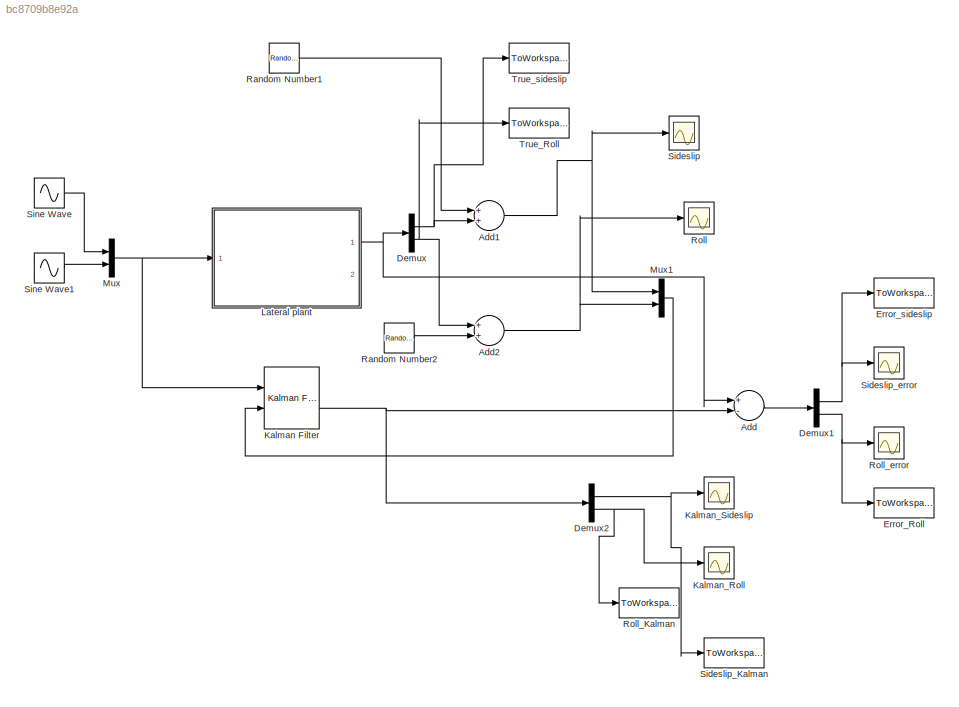
MODEL slx_bc8709b8e92a
KIND model
CONFIG AbsTol = auto
CONFIG EnableMultiTasking = off
CONFIG FixedStep = auto
CONFIG MaxStep = auto
CONFIG MinStep = auto
CONFIG RelTol = 1e-3
CONFIG SampleTimeConstraint = Unconstrained
CONFIG Solver = VariableStepAuto
CONFIG SolverName = VariableStepAuto
CONFIG StartTime = 0.0
CONFIG StopTime = 100
BLOCK [Sum] Add
  InputSameDT = off
  Inputs = +-
  OutDataTypeStr = Inherit: Inherit via internal rule
  Ports = [2, 1]
  SaturateOnIntegerOverflow = off
BLOCK [Sum] Add1
  InputSameDT = off
  OutDataTypeStr = Inherit: Inherit via internal rule
  Ports = [2, 1]
  SaturateOnIntegerOverflow = off
BLOCK [Sum] Add2
  InputSameDT = off
  OutDataTypeStr = Inherit: Inherit via internal rule
  Ports = [2, 1]
  SaturateOnIntegerOverflow = off
BLOCK [Demux] Demux
  DisplayOption = bar
  Outputs = 2
  Ports = [1, 2]
BLOCK [Demux] Demux1
  DisplayOption = bar
  Outputs = 2
  Ports = [1, 2]
BLOCK [Demux] Demux2
  DisplayOption = bar
  Outputs = 2
  Ports = [1, 2]
BLOCK [ToWorkspace] Error_Roll
  FixptAsFi = on
  MaxDataPoints = inf
  Ports = [1]
  SampleTime = 0.001
  Save2DSignal = 2-D array (concatenate along first dimension)
  VariableName = ErrorRoll
BLOCK [ToWorkspace] Error_sideslip
  FixptAsFi = on
  MaxDataPoints = inf
  Ports = [1]
  SampleTime = 0.001
  Save2DSignal = 2-D array (concatenate along first dimension)
  VariableName = ErrorSideslip
BLOCK [Reference] Kalman Filter  REF=ctrlSharedLib/Kalman Filter
  Ports = [2, 2]
  SourceBlock = ctrlSharedLib/Kalman Filter
  SourceType = ctrlKalmanFilter
BLOCK [Scope] Kalman_Roll
  NumInputPorts = 1
  Ports = [1]
  ScopeSpecificationString = Simulink.scopes.TimeScopeBlockCfg('CurrentConfiguration', extmgr.ConfigurationSet(extmgr.Configuration('Core','General UI',true),extmgr.Configuration('Core','Source UI',true),extmgr.Configuration('Sources','WiredSimulink',true,'DataLoggingVariableName','ScopeData3'),extmgr.Configuration('Visuals','Time Domain',true,'SerializedDisplays',{struct('MinYLimReal','-2.95731','MaxYLimReal','0.3395','YLabe...<+1396ch>
BLOCK [Scope] Kalman_Sideslip
  NumInputPorts = 1
  Ports = [1]
  ScopeSpecificationString = Simulink.scopes.TimeScopeBlockCfg('CurrentConfiguration', extmgr.ConfigurationSet(extmgr.Configuration('Core','General UI',true),extmgr.Configuration('Core','Source UI',true),extmgr.Configuration('Sources','WiredSimulink',true,'DataLoggingVariableName','ScopeData2'),extmgr.Configuration('Visuals','Time Domain',true,'SerializedDisplays',{struct('MinYLimReal','-0.3917','MaxYLimReal','0.38076','YLabe...<+1363ch>
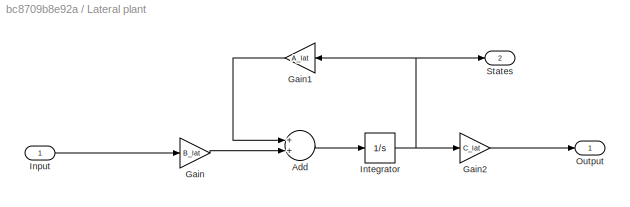
BLOCK [SubSystem] Lateral plant 
  Ports = [1, 2]
  RequestExecContextInheritance = off
  Variant = off
BLOCK [Sum] Lateral plant /Add
  InputSameDT = off
  OutDataTypeStr = Inherit: Inherit via internal rule
  Ports = [2, 1]
  SaturateOnIntegerOverflow = off
BLOCK [Gain] Lateral plant /Gain
  Gain = B_lat
  Multiplication = Matrix(K*u)
  OutDataTypeStr = Inherit: Inherit via internal rule
  ParamDataTypeStr = Inherit: Inherit via internal rule
  SaturateOnIntegerOverflow = off
BLOCK [Gain] Lateral plant /Gain1
  Gain = A_lat
  Multiplication = Matrix(K*u)
  OutDataTypeStr = Inherit: Inherit via internal rule
  ParamDataTypeStr = Inherit: Inherit via internal rule
  SaturateOnIntegerOverflow = off
BLOCK [Gain] Lateral plant /Gain2
  Gain = C_lat
  Multiplication = Matrix(K*u)
  OutDataTypeStr = Inherit: Inherit via internal rule
  ParamDataTypeStr = Inherit: Inherit via internal rule
  SaturateOnIntegerOverflow = off
BLOCK [Inport] Lateral plant /Input
  IconDisplay = Port number
BLOCK [Integrator] Lateral plant /Integrator
  Ports = [1, 1]
BLOCK [Outport] Lateral plant /Output
  IconDisplay = Port number
BLOCK [Outport] Lateral plant /States
  IconDisplay = Port number
  Port = 2
BLOCK [Mux] Mux
  DisplayOption = bar
  Inputs = 2
  Ports = [2, 1]
BLOCK [Mux] Mux1
  DisplayOption = bar
  Inputs = 2
  Ports = [2, 1]
BLOCK [RandomNumber] Random Number1
  SampleTime = 0.0001
  Variance = 0.01
BLOCK [RandomNumber] Random Number2
  SampleTime = 0.0001
  Variance = 3
BLOCK [Scope] Roll
  NumInputPorts = 1
  Ports = [1]
  ScopeSpecificationString = Simulink.scopes.TimeScopeBlockCfg('CurrentConfiguration', extmgr.ConfigurationSet(extmgr.Configuration('Core','General UI',true),extmgr.Configuration('Core','Source UI',true),extmgr.Configuration('Sources','WiredSimulink',true,'DataLoggingVariableName','ScopeData1'),extmgr.Configuration('Visuals','Time Domain',true,'SerializedDisplays',{struct('MinYLimReal','-11.79835','MaxYLimReal','9.0694','YLab...<+1396ch>
BLOCK [ToWorkspace] Roll_Kalman
  FixptAsFi = on
  MaxDataPoints = inf
  Ports = [1]
  SampleTime = 0.001
  Save2DSignal = 2-D array (concatenate along first dimension)
  VariableName = Kalman_roll
BLOCK [Scope] Roll_error
  NumInputPorts = 1
  Ports = [1]
  ScopeSpecificationString = Simulink.scopes.TimeScopeBlockCfg('CurrentConfiguration', extmgr.ConfigurationSet(extmgr.Configuration('Core','General UI',true),extmgr.Configuration('Core','Source UI',true),extmgr.Configuration('Sources','WiredSimulink',true,'DataLoggingVariableName','ScopeData5'),extmgr.Configuration('Visuals','Time Domain',true,'SerializedDisplays',{struct('MinYLimReal','-0.08209','MaxYLimReal','0.06852','YLab...<+1367ch>
BLOCK [Scope] Sideslip
  NumInputPorts = 1
  Ports = [1]
  ScopeSpecificationString = Simulink.scopes.TimeScopeBlockCfg('CurrentConfiguration', extmgr.ConfigurationSet(extmgr.Configuration('Core','General UI',true),extmgr.Configuration('Core','Source UI',true),extmgr.Configuration('Sources','WiredSimulink',true),extmgr.Configuration('Visuals','Time Domain',true,'SerializedDisplays',{struct('MinYLimReal','-0.83813','MaxYLimReal','0.81598','YLabelReal','','MinYLimMag','0.00000','MaxY...<+1374ch>
BLOCK [ToWorkspace] Sideslip_Kalman
  FixptAsFi = on
  MaxDataPoints = inf
  Ports = [1]
  SampleTime = 0.001
  Save2DSignal = 2-D array (concatenate along first dimension)
  VariableName = Kalman_sideslip
BLOCK [Scope] Sideslip_error
  NumInputPorts = 1
  Ports = [1]
  ScopeSpecificationString = Simulink.scopes.TimeScopeBlockCfg('CurrentConfiguration', extmgr.ConfigurationSet(extmgr.Configuration('Core','General UI',true),extmgr.Configuration('Core','Source UI',true),extmgr.Configuration('Sources','WiredSimulink',true,'DataLoggingVariableName','ScopeData4'),extmgr.Configuration('Visuals','Time Domain',true,'SerializedDisplays',{struct('MinYLimReal','-0.01192','MaxYLimReal','0.01133','YLab...<+1367ch>
BLOCK [Sin] Sine Wave
  Frequency = 15
  Ports = [0, 1]
  SampleTime = 0
BLOCK [Sin] Sine Wave1
  Frequency = 15
  Ports = [0, 1]
  SampleTime = 0
BLOCK [ToWorkspace] True_Roll
  FixptAsFi = on
  MaxDataPoints = inf
  Ports = [1]
  SampleTime = 0.001
  Save2DSignal = 2-D array (concatenate along first dimension)
  VariableName = True_roll
BLOCK [ToWorkspace] True_sideslip
  FixptAsFi = on
  MaxDataPoints = inf
  Ports = [1]
  SampleTime = 0.001
  Save2DSignal = 2-D array (concatenate along first dimension)
  VariableName = True_sideslip
NET Add1:1 -> Mux1:1, Sideslip:1
NET Add2:1 -> Mux1:2, Roll:1
LINE Add:1 -> Demux1:1
NET Demux1:1 -> Error_sideslip:1, Sideslip_error:1
NET Demux1:2 -> Error_Roll:1, Roll_error:1
NET Demux2:1 -> Kalman_Sideslip:1, Sideslip_Kalman:1
NET Demux2:2 -> Kalman_Roll:1, Roll_Kalman:1
NET Demux:1 -> Add1:2, True_sideslip:1
NET Demux:2 -> Add2:1, True_Roll:1
NET Kalman Filter:2 -> Add:2, Demux2:1
LINE Lateral plant /Add:1 -> Lateral plant /Integrator:1
LINE Lateral plant /Gain1:1 -> Lateral plant /Add:1
LINE Lateral plant /Gain2:1 -> Lateral plant /Output:1
LINE Lateral plant /Gain:1 -> Lateral plant /Add:2
LINE Lateral plant /Input:1 -> Lateral plant /Gain:1
NET Lateral plant /Integrator:1 -> Lateral plant /Gain1:1, Lateral plant /Gain2:1, Lateral plant /States:1
NET Lateral plant :1 -> Add:1, Demux:1
LINE Mux1:1 -> Kalman Filter:2
NET Mux:1 -> Kalman Filter:1, Lateral plant :1
LINE Random Number1:1 -> Add1:1
LINE Random Number2:1 -> Add2:2
LINE Sine Wave1:1 -> Mux:2
LINE Sine Wave:1 -> Mux:1
note: NET lines group one-source signal fan-out (src -> all destinations, sorted); 1:1 wires keep LINE
